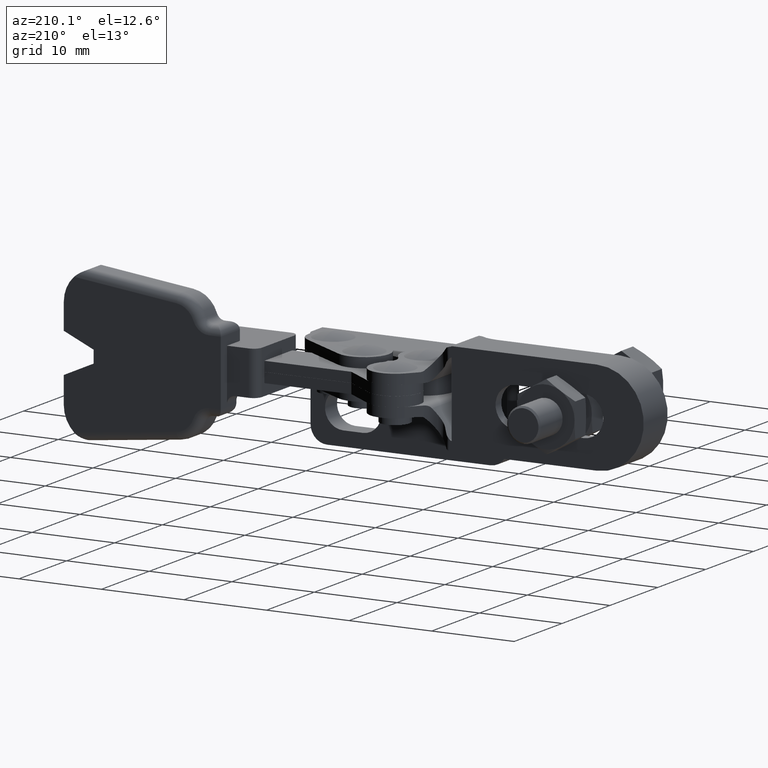
[diagram: clean part render]
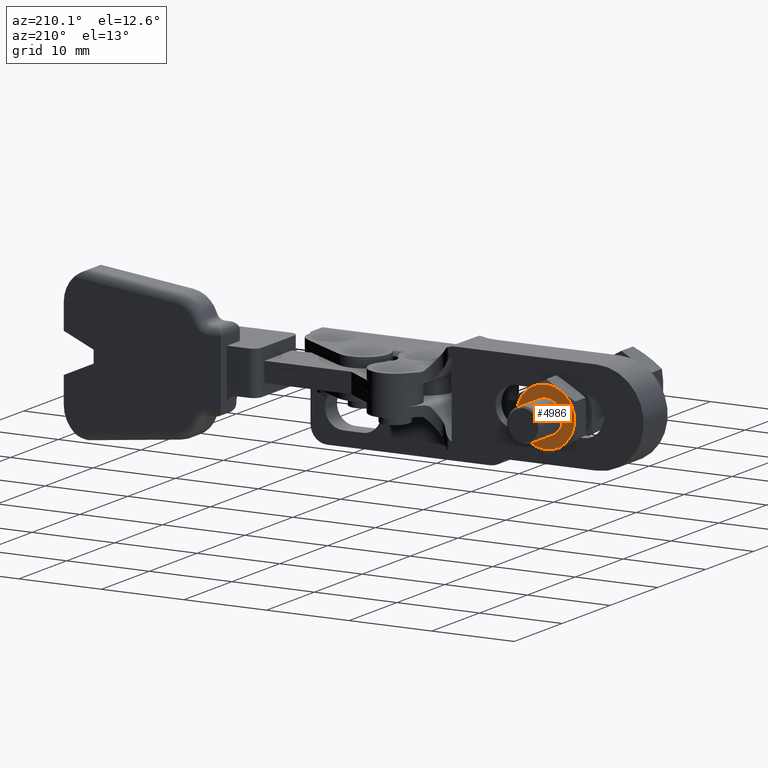
[diagram: same view with one face highlighted and labeled with its STEP entity id]
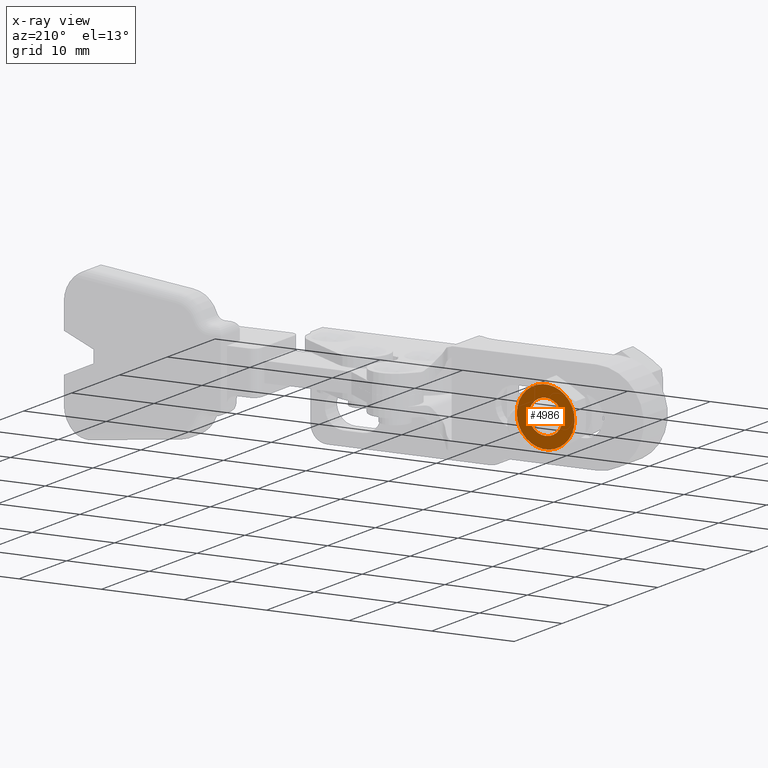
[diagram: x-ray of the same camera — body ghosted, the highlighted face saturated]
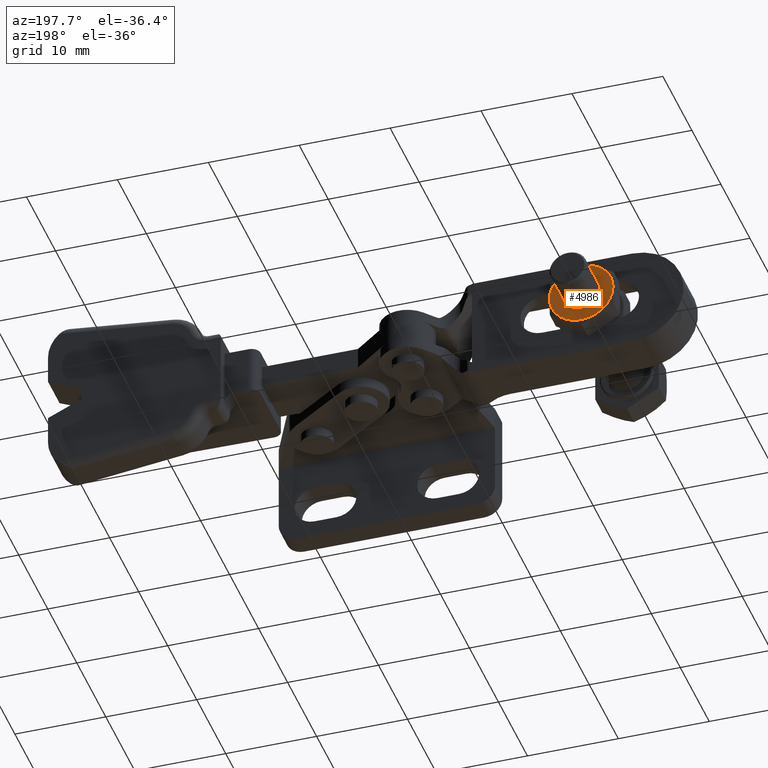
[diagram: same view with one face highlighted and labeled with its STEP entity id]
A machine part, auxiliary view. The second image highlights one B-rep face of the part: STEP entity #4986.
The next image is the same camera in x-ray: the body ghosted, the highlighted face saturated — about 0% of this face is hidden behind the body in this view.
A second angle (auxiliary view) of the same face is appended — the face is thin or edge-on in the first view.
In plain terms, the highlighted planar face has unit normal (0, -1, 0).
Its self-contained STEP definition (entity closure, byte-faithful):
#531 = CIRCLE ( 'NONE', #4054, 3.500000000000001300 ) ;
#585 = CIRCLE ( 'NONE', #1677, 3.500000000000001300 ) ;
#888 = EDGE_LOOP ( 'NONE', ( #1679, #8983 ) ) ;
#981 = DIRECTION ( 'NONE',  ( -1.000000000000000000, 0.0000000000000000000, 0.0000000000000000000 ) ) ;
#1222 = CARTESIAN_POINT ( 'NONE',  ( -13.60328888441245900, 20.90000245742331200, -3.031088913245535600 ) ) ;
#1295 = ORIENTED_EDGE ( 'NONE', *, *, #1650, .F. ) ;
#1299 = CARTESIAN_POINT ( 'NONE',  ( -15.35328888441246100, 20.90000245742331200, -2.050000000000002900 ) ) ;
#1318 = AXIS2_PLACEMENT_3D ( 'NONE', #4472, #9900, #5232 ) ;
#1530 = FACE_BOUND ( 'NONE', #888, .T. ) ;
#1539 = CIRCLE ( 'NONE', #7425, 3.500000000000001300 ) ;
#1559 = AXIS2_PLACEMENT_3D ( 'NONE', #3516, #7081, #1895 ) ;
#1650 = EDGE_CURVE ( 'NONE', #5977, #4727, #585, .T. ) ;
#1663 = DIRECTION ( 'NONE',  ( 0.0000000000000000000, -1.000000000000000000, 0.0000000000000000000 ) ) ;
#1670 = AXIS2_PLACEMENT_3D ( 'NONE', #3636, #9054, #4395 ) ;
#1677 = AXIS2_PLACEMENT_3D ( 'NONE', #6101, #7150, #6283 ) ;
#1679 = ORIENTED_EDGE ( 'NONE', *, *, #5201, .T. ) ;
#1895 = DIRECTION ( 'NONE',  ( -1.000000000000000000, 0.0000000000000000000, 0.0000000000000000000 ) ) ;
#2215 = VERTEX_POINT ( 'NONE', #1299 ) ;
#2367 = EDGE_CURVE ( 'NONE', #7609, #8657, #531, .T. ) ;
#2417 = DIRECTION ( 'NONE',  ( 0.0000000000000000000, -1.000000000000000000, 0.0000000000000000000 ) ) ;
#2483 = AXIS2_PLACEMENT_3D ( 'NONE', #3417, #4887, #4920 ) ;
#2584 = ORIENTED_EDGE ( 'NONE', *, *, #5845, .F. ) ;
#2586 = CARTESIAN_POINT ( 'NONE',  ( -18.85328888441246400, 20.90000245742331200, -1.609449703934158800E-015 ) ) ;
#3112 = CARTESIAN_POINT ( 'NONE',  ( -17.10328888441246100, 20.90000245742331200, 3.031088913245533000 ) ) ;
#3185 = CARTESIAN_POINT ( 'NONE',  ( -17.10328888441246400, 20.90000245742331200, -3.031088913245536100 ) ) ;
#3191 = VERTEX_POINT ( 'NONE', #3185 ) ;
#3237 = FACE_OUTER_BOUND ( 'NONE', #5957, .T. ) ;
#3244 = CARTESIAN_POINT ( 'NONE',  ( -11.85328888441246100, 20.90000245742331200, -1.609449703934158800E-015 ) ) ;
#3373 = EDGE_CURVE ( 'NONE', #3191, #8770, #4086, .T. ) ;
#3417 = CARTESIAN_POINT ( 'NONE',  ( -15.35328888441246100, 20.90000245742331200, -4.041451884327384100 ) ) ;
#3516 = CARTESIAN_POINT ( 'NONE',  ( -15.35328888441246100, 20.90000245742331200, -1.609449703934158800E-015 ) ) ;
#3572 = VERTEX_POINT ( 'NONE', #8885 ) ;
#3636 = CARTESIAN_POINT ( 'NONE',  ( -15.35328888441246100, 20.90000245742331200, -1.609449703934158800E-015 ) ) ;
#4054 = AXIS2_PLACEMENT_3D ( 'NONE', #9654, #6669, #981 ) ;
#4086 = CIRCLE ( 'NONE', #1559, 3.500000000000001300 ) ;
#4124 = ORIENTED_EDGE ( 'NONE', *, *, #2367, .F. ) ;
#4168 = PLANE ( 'NONE',  #2483 ) ;
#4395 = DIRECTION ( 'NONE',  ( 1.000000000000000000, 0.0000000000000000000, 0.0000000000000000000 ) ) ;
#4472 = CARTESIAN_POINT ( 'NONE',  ( -15.35328888441246100, 20.90000245742331200, -3.071844983593003200E-015 ) ) ;
#4691 = EDGE_CURVE ( 'NONE', #8657, #3191, #1539, .T. ) ;
#4727 = VERTEX_POINT ( 'NONE', #7937 ) ;
#4887 = DIRECTION ( 'NONE',  ( 0.0000000000000000000, -1.000000000000000000, 0.0000000000000000000 ) ) ;
#4920 = DIRECTION ( 'NONE',  ( -1.000000000000000000, 0.0000000000000000000, 0.0000000000000000000 ) ) ;
#4986 = ADVANCED_FACE ( 'NONE', ( #1530, #3237 ), #4168, .F. ) ;
#5024 = ORIENTED_EDGE ( 'NONE', *, *, #3373, .F. ) ;
#5111 = CIRCLE ( 'NONE', #1318, 2.049999999999999800 ) ;
#5201 = EDGE_CURVE ( 'NONE', #2215, #3572, #5111, .T. ) ;
#5232 = DIRECTION ( 'NONE',  ( 0.0000000000000000000, 0.0000000000000000000, -1.000000000000000000 ) ) ;
#5432 = CIRCLE ( 'NONE', #1670, 3.500000000000001300 ) ;
#5539 = AXIS2_PLACEMENT_3D ( 'NONE', #6957, #2417, #7718 ) ;
#5845 = EDGE_CURVE ( 'NONE', #4727, #7609, #6324, .T. ) ;
#5957 = EDGE_LOOP ( 'NONE', ( #9622, #4124, #2584, #1295, #9205, #5024 ) ) ;
#5977 = VERTEX_POINT ( 'NONE', #3244 ) ;
#6037 = CIRCLE ( 'NONE', #5539, 2.049999999999999800 ) ;
#6101 = CARTESIAN_POINT ( 'NONE',  ( -15.35328888441246100, 20.90000245742331200, -1.609449703934158800E-015 ) ) ;
#6164 = CARTESIAN_POINT ( 'NONE',  ( -15.35328888441246100, 20.90000245742331200, -1.609449703934158800E-015 ) ) ;
#6283 = DIRECTION ( 'NONE',  ( -1.000000000000000000, 0.0000000000000000000, 0.0000000000000000000 ) ) ;
#6324 = CIRCLE ( 'NONE', #9415, 3.500000000000001300 ) ;
#6669 = DIRECTION ( 'NONE',  ( 0.0000000000000000000, -1.000000000000000000, 0.0000000000000000000 ) ) ;
#6801 = EDGE_CURVE ( 'NONE', #5977, #8770, #5432, .T. ) ;
#6946 = DIRECTION ( 'NONE',  ( -1.000000000000000000, 0.0000000000000000000, 0.0000000000000000000 ) ) ;
#6957 = CARTESIAN_POINT ( 'NONE',  ( -15.35328888441246100, 20.90000245742331200, -3.071844983593003200E-015 ) ) ;
#7081 = DIRECTION ( 'NONE',  ( 0.0000000000000000000, -1.000000000000000000, 0.0000000000000000000 ) ) ;
#7150 = DIRECTION ( 'NONE',  ( 0.0000000000000000000, -1.000000000000000000, 0.0000000000000000000 ) ) ;
#7231 = CARTESIAN_POINT ( 'NONE',  ( -15.35328888441246100, 20.90000245742331200, -1.609449703934158800E-015 ) ) ;
#7319 = DIRECTION ( 'NONE',  ( 0.0000000000000000000, -1.000000000000000000, 0.0000000000000000000 ) ) ;
#7374 = DIRECTION ( 'NONE',  ( -1.000000000000000000, 0.0000000000000000000, 0.0000000000000000000 ) ) ;
#7425 = AXIS2_PLACEMENT_3D ( 'NONE', #7231, #7319, #7374 ) ;
#7609 = VERTEX_POINT ( 'NONE', #3112 ) ;
#7718 = DIRECTION ( 'NONE',  ( 0.0000000000000000000, 0.0000000000000000000, -1.000000000000000000 ) ) ;
#7937 = CARTESIAN_POINT ( 'NONE',  ( -13.60328888441246100, 20.90000245742331200, 3.031088913245533000 ) ) ;
#8090 = EDGE_CURVE ( 'NONE', #3572, #2215, #6037, .T. ) ;
#8657 = VERTEX_POINT ( 'NONE', #2586 ) ;
#8770 = VERTEX_POINT ( 'NONE', #1222 ) ;
#8885 = CARTESIAN_POINT ( 'NONE',  ( -15.35328888441246100, 20.90000245742331200, 2.049999999999996700 ) ) ;
#8983 = ORIENTED_EDGE ( 'NONE', *, *, #8090, .T. ) ;
#9054 = DIRECTION ( 'NONE',  ( 0.0000000000000000000, 1.000000000000000000, 0.0000000000000000000 ) ) ;
#9205 = ORIENTED_EDGE ( 'NONE', *, *, #6801, .T. ) ;
#9415 = AXIS2_PLACEMENT_3D ( 'NONE', #6164, #1663, #6946 ) ;
#9622 = ORIENTED_EDGE ( 'NONE', *, *, #4691, .F. ) ;
#9654 = CARTESIAN_POINT ( 'NONE',  ( -15.35328888441246100, 20.90000245742331200, -1.609449703934158800E-015 ) ) ;
#9900 = DIRECTION ( 'NONE',  ( 0.0000000000000000000, -1.000000000000000000, 0.0000000000000000000 ) ) ;